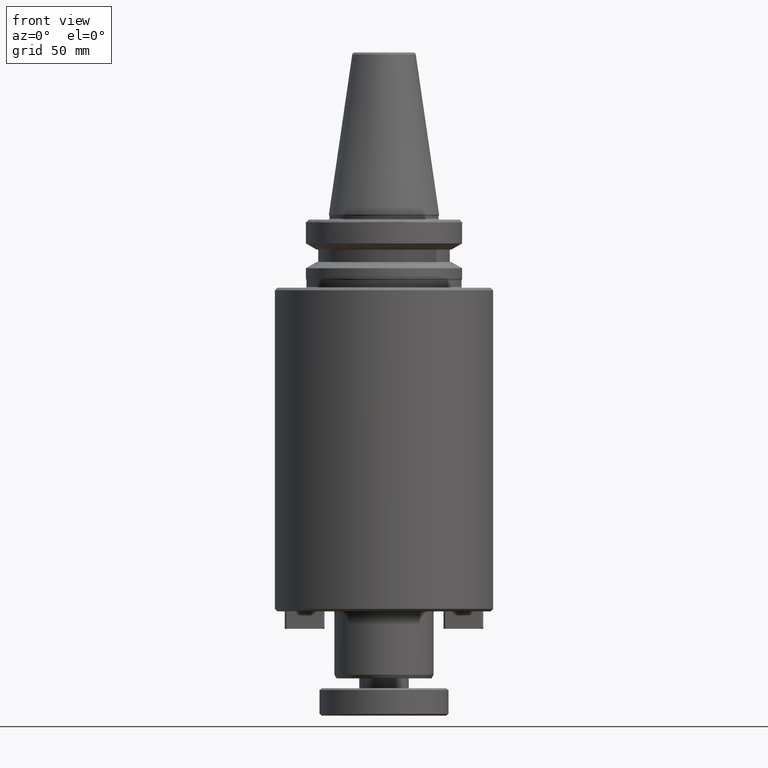
[diagram: clean part render]
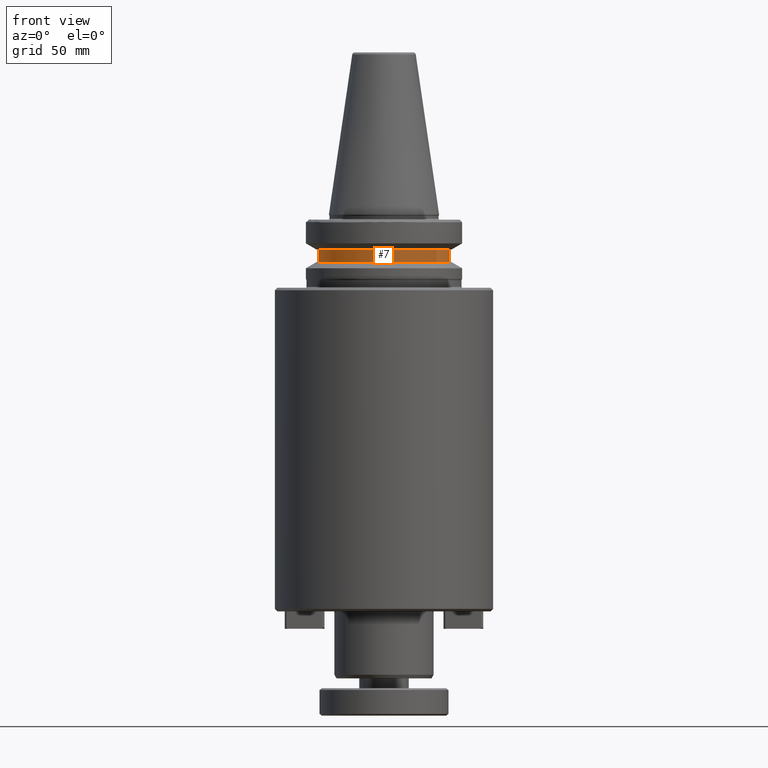
[diagram: same view with one face highlighted and labeled with its STEP entity id]
A machine part, front view. The second image highlights one B-rep face of the part: STEP entity #7.
In plain terms, the highlighted cylindrical surface (partial cylindrical patch) has radius 26.5 mm, axis along (0, 0, 1).
Its self-contained STEP definition (entity closure, byte-faithful):
#7 = ADVANCED_FACE ( 'NONE', ( #169 ), #1879, .T. ) ;
#169 = FACE_OUTER_BOUND ( 'NONE', #1501, .T. ) ;
#201 = ORIENTED_EDGE ( 'NONE', *, *, #673, .F. ) ;
#211 = LINE ( 'NONE', #1184, #3530 ) ;
#385 = VERTEX_POINT ( 'NONE', #588 ) ;
#588 = CARTESIAN_POINT ( 'NONE',  ( 26.50000000000000000, 0.0000000000000000000, -14.10000000000000100 ) ) ;
#673 = EDGE_CURVE ( 'NONE', #1057, #3563, #3194, .T. ) ;
#784 = VERTEX_POINT ( 'NONE', #2619 ) ;
#802 = EDGE_CURVE ( 'NONE', #3563, #784, #211, .T. ) ;
#866 = EDGE_CURVE ( 'NONE', #385, #784, #1979, .T. ) ;
#1057 = VERTEX_POINT ( 'NONE', #3254 ) ;
#1151 = CARTESIAN_POINT ( 'NONE',  ( 26.50000000000000000, 0.0000000000000000000, 69.75694866325665100 ) ) ;
#1184 = CARTESIAN_POINT ( 'NONE',  ( -26.50000000000000000, 3.245314017740485800E-015, 69.75694866325665100 ) ) ;
#1260 = EDGE_CURVE ( 'NONE', #1057, #385, #1648, .T. ) ;
#1319 = DIRECTION ( 'NONE',  ( 0.0000000000000000000, 0.0000000000000000000, 1.000000000000000000 ) ) ;
#1337 = CARTESIAN_POINT ( 'NONE',  ( 0.0000000000000000000, 0.0000000000000000000, -14.10000000000000100 ) ) ;
#1414 = DIRECTION ( 'NONE',  ( 0.0000000000000000000, 0.0000000000000000000, 1.000000000000000000 ) ) ;
#1448 = CARTESIAN_POINT ( 'NONE',  ( 0.0000000000000000000, 0.0000000000000000000, 69.75694866325665100 ) ) ;
#1501 = EDGE_LOOP ( 'NONE', ( #2270, #201, #3178, #2479 ) ) ;
#1634 = DIRECTION ( 'NONE',  ( 1.000000000000000000, 0.0000000000000000000, 0.0000000000000000000 ) ) ;
#1639 = DIRECTION ( 'NONE',  ( 1.000000000000000000, 0.0000000000000000000, 0.0000000000000000000 ) ) ;
#1648 = LINE ( 'NONE', #1151, #1801 ) ;
#1706 = CARTESIAN_POINT ( 'NONE',  ( -26.50000000000000000, 3.245314017740485800E-015, -19.10000000000000500 ) ) ;
#1801 = VECTOR ( 'NONE', #1414, 1000.000000000000000 ) ;
#1879 = CYLINDRICAL_SURFACE ( 'NONE', #2698, 26.50000000000000000 ) ;
#1979 = CIRCLE ( 'NONE', #2109, 26.50000000000000000 ) ;
#2109 = AXIS2_PLACEMENT_3D ( 'NONE', #1337, #2748, #1639 ) ;
#2232 = AXIS2_PLACEMENT_3D ( 'NONE', #3160, #2581, #2817 ) ;
#2270 = ORIENTED_EDGE ( 'NONE', *, *, #802, .F. ) ;
#2479 = ORIENTED_EDGE ( 'NONE', *, *, #866, .T. ) ;
#2581 = DIRECTION ( 'NONE',  ( -0.0000000000000000000, -0.0000000000000000000, -1.000000000000000000 ) ) ;
#2607 = DIRECTION ( 'NONE',  ( 0.0000000000000000000, 0.0000000000000000000, 1.000000000000000000 ) ) ;
#2619 = CARTESIAN_POINT ( 'NONE',  ( -26.50000000000000000, 3.245314017740485800E-015, -14.10000000000000100 ) ) ;
#2698 = AXIS2_PLACEMENT_3D ( 'NONE', #1448, #1319, #1634 ) ;
#2748 = DIRECTION ( 'NONE',  ( -0.0000000000000000000, -0.0000000000000000000, -1.000000000000000000 ) ) ;
#2817 = DIRECTION ( 'NONE',  ( 1.000000000000000000, 0.0000000000000000000, 0.0000000000000000000 ) ) ;
#3160 = CARTESIAN_POINT ( 'NONE',  ( 0.0000000000000000000, 0.0000000000000000000, -19.10000000000000500 ) ) ;
#3178 = ORIENTED_EDGE ( 'NONE', *, *, #1260, .T. ) ;
#3194 = CIRCLE ( 'NONE', #2232, 26.50000000000000000 ) ;
#3254 = CARTESIAN_POINT ( 'NONE',  ( 26.50000000000000000, 0.0000000000000000000, -19.10000000000000500 ) ) ;
#3530 = VECTOR ( 'NONE', #2607, 1000.000000000000000 ) ;
#3563 = VERTEX_POINT ( 'NONE', #1706 ) ;